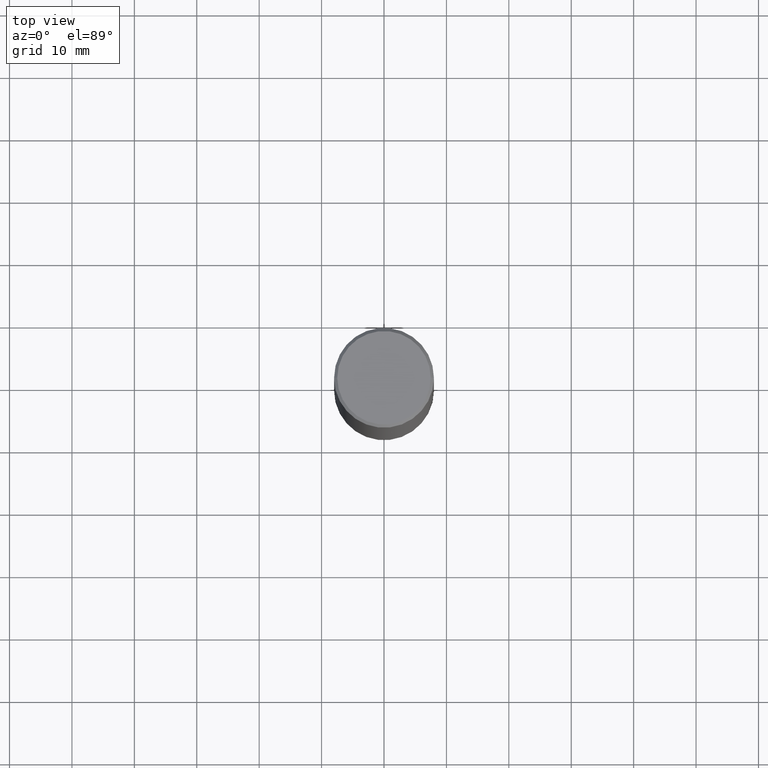
[diagram: clean part render]
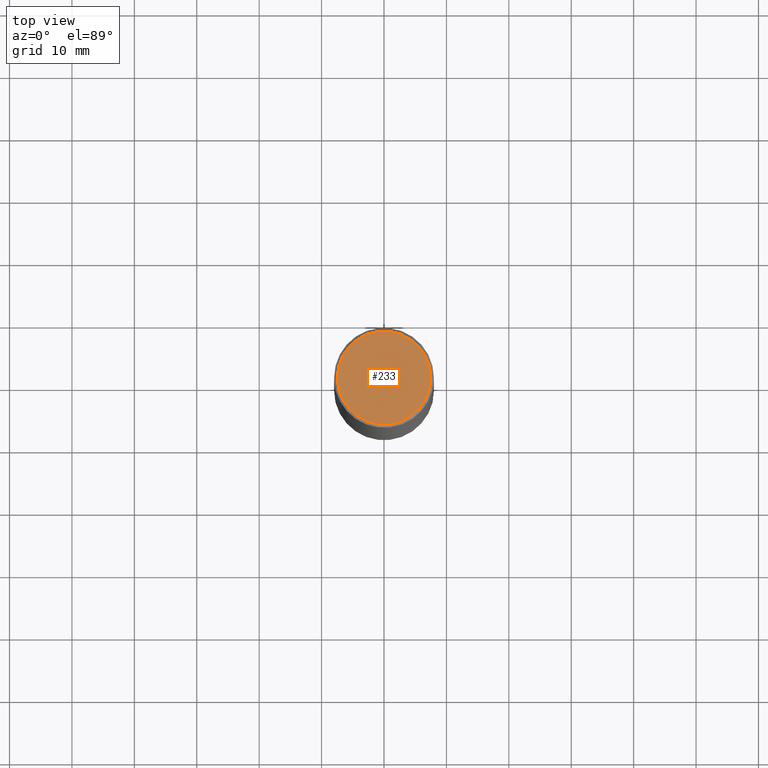
[diagram: same view with one face highlighted and labeled with its STEP entity id]
A machine part, top view. The second image highlights one B-rep face of the part: STEP entity #233.
In plain terms, the highlighted planar face has unit normal (0, -0, -1).
Its self-contained STEP definition (entity closure, byte-faithful):
#12 = ORIENTED_EDGE ( 'NONE', *, *, #330, .T. ) ;
#22 = DIRECTION ( 'NONE',  ( -2.445468806185136597E-29, 3.491481338843145583E-15, 1.000000000000000000 ) ) ;
#32 = DIRECTION ( 'NONE',  ( 1.000000000000000000, -6.982962677686267499E-15, 4.876053491004738270E-29 ) ) ;
#51 = EDGE_CURVE ( 'NONE', #150, #143, #104, .T. ) ;
#93 = CARTESIAN_POINT ( 'NONE',  ( -2.087702828670439639E-46, 2.980686340760894400E-32, 8.537024980200822558E-18 ) ) ;
#104 = CIRCLE ( 'NONE', #117, 0.2949499999999997679 ) ;
#117 = AXIS2_PLACEMENT_3D ( 'NONE', #223, #22, #135 ) ;
#120 = EDGE_LOOP ( 'NONE', ( #228, #12 ) ) ;
#135 = DIRECTION ( 'NONE',  ( 1.000000000000000000, -6.982962677686267499E-15, 4.876053491004738270E-29 ) ) ;
#143 = VERTEX_POINT ( 'NONE', #324 ) ;
#150 = VERTEX_POINT ( 'NONE', #361 ) ;
#197 = PLANE ( 'NONE',  #259 ) ;
#200 = CARTESIAN_POINT ( 'NONE',  ( 2.059624841783562486E-15, 0.2949499999999997679, -1.025543908401684563E-15 ) ) ;
#223 = CARTESIAN_POINT ( 'NONE',  ( -2.087702828670439639E-46, 2.980686340760894400E-32, 8.537024980200822558E-18 ) ) ;
#228 = ORIENTED_EDGE ( 'NONE', *, *, #51, .T. ) ;
#233 = ADVANCED_FACE ( 'NONE', ( #364 ), #197, .F. ) ;
#258 = DIRECTION ( 'NONE',  ( 2.438088387897960049E-29, -3.491481338843145188E-15, -1.000000000000000000 ) ) ;
#259 = AXIS2_PLACEMENT_3D ( 'NONE', #200, #258, #334 ) ;
#279 = CIRCLE ( 'NONE', #348, 0.2949499999999997679 ) ;
#280 = DIRECTION ( 'NONE',  ( -2.445468806185136597E-29, 3.491481338843145583E-15, 1.000000000000000000 ) ) ;
#324 = CARTESIAN_POINT ( 'NONE',  ( 0.2949499999999997679, -2.127023677808858891E-15, 8.537024980215462707E-18 ) ) ;
#330 = EDGE_CURVE ( 'NONE', #143, #150, #279, .T. ) ;
#334 = DIRECTION ( 'NONE',  ( -1.000000000000000000, 6.982962677686265922E-15, -4.876176775795935793E-29 ) ) ;
#348 = AXIS2_PLACEMENT_3D ( 'NONE', #93, #280, #32 ) ;
#361 = CARTESIAN_POINT ( 'NONE',  ( -0.2949499999999997679, 2.094539655171994135E-15, 8.537024980186296424E-18 ) ) ;
#364 = FACE_OUTER_BOUND ( 'NONE', #120, .T. ) ;